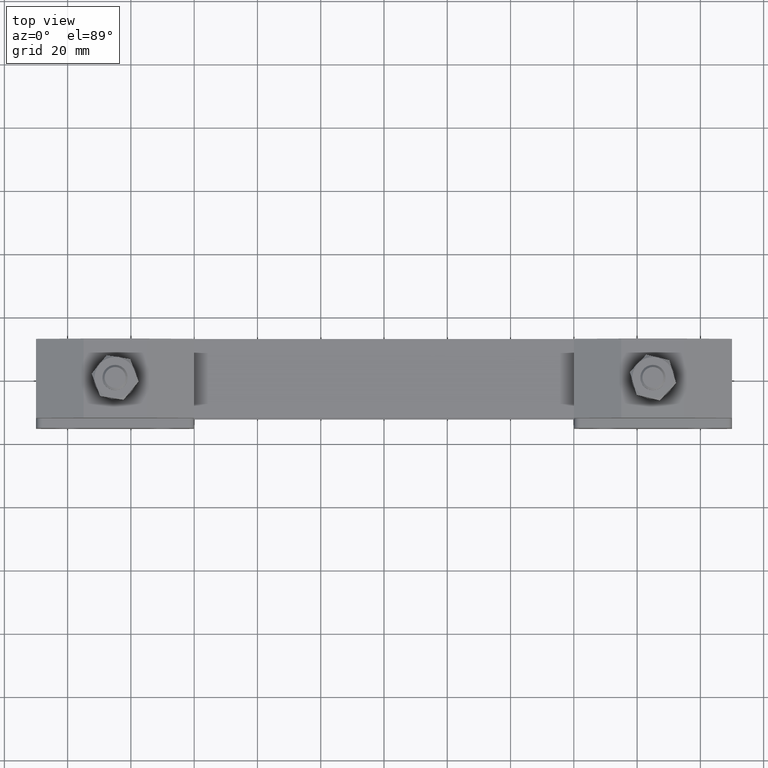
[diagram: clean part render]
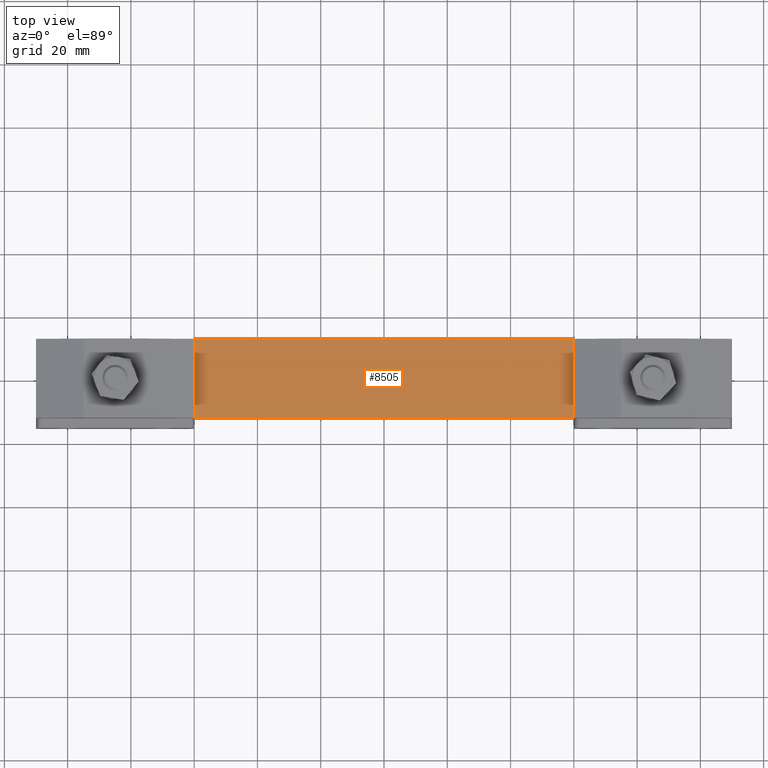
[diagram: same view with one face highlighted and labeled with its STEP entity id]
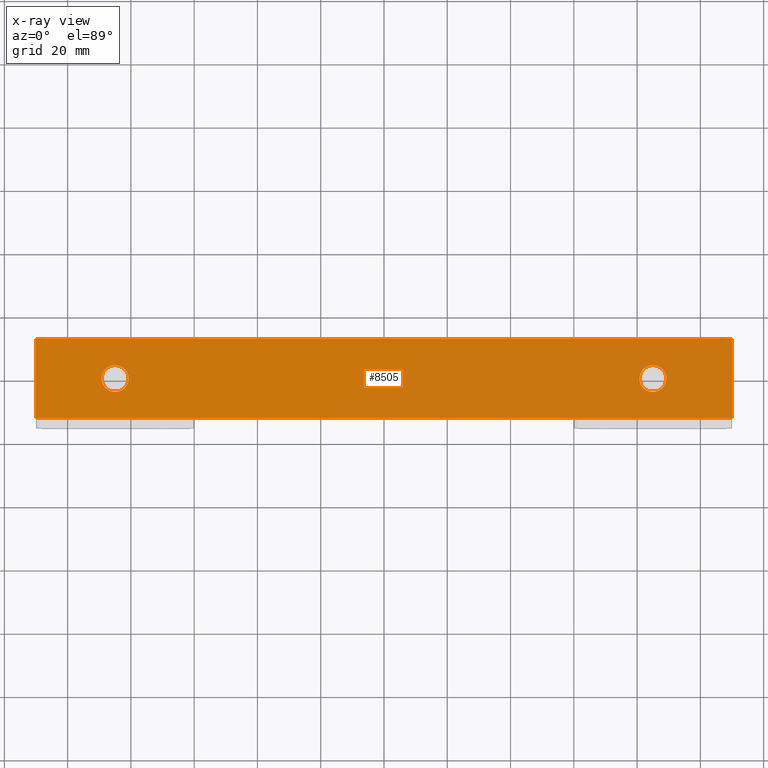
[diagram: x-ray of the same camera — body ghosted, the highlighted face saturated]
A machine part, top view. The second image highlights one B-rep face of the part: STEP entity #8505.
The next image is the same camera in x-ray: the body ghosted, the highlighted face saturated — about 0% of this face is hidden behind the body in this view.
In plain terms, the highlighted planar face has unit normal (0, 0, 1).
Its self-contained STEP definition (entity closure, byte-faithful):
#153 = EDGE_CURVE ( 'NONE', #14371, #13866, #4004, .T. ) ;
#373 = DIRECTION ( 'NONE',  ( 0.0000000000000000000, 0.0000000000000000000, -1.000000000000000000 ) ) ;
#708 = CARTESIAN_POINT ( 'NONE',  ( 110.0000000000000000, 12.50000000000000000, 28.00000000000000000 ) ) ;
#935 = ORIENTED_EDGE ( 'NONE', *, *, #13508, .T. ) ;
#1132 = DIRECTION ( 'NONE',  ( -1.000000000000000000, 0.0000000000000000000, 0.0000000000000000000 ) ) ;
#1184 = VECTOR ( 'NONE', #20796, 1000.000000000000000 ) ;
#1200 = CARTESIAN_POINT ( 'NONE',  ( -110.0000000000000000, 12.50000000000000000, 28.00000000000000000 ) ) ;
#1572 = CARTESIAN_POINT ( 'NONE',  ( -110.0000000000000000, -12.50000000000000000, 28.00000000000000000 ) ) ;
#2011 = CARTESIAN_POINT ( 'NONE',  ( 85.00000000000000000, 2.082156062149785100E-014, 28.00000000000000000 ) ) ;
#2048 = PLANE ( 'NONE',  #8786 ) ;
#3083 = CARTESIAN_POINT ( 'NONE',  ( -85.00000000000000000, 3.252606517453555500E-018, 28.00000000000000000 ) ) ;
#3192 = CIRCLE ( 'NONE', #16843, 4.250000000000003600 ) ;
#3926 = CARTESIAN_POINT ( 'NONE',  ( 89.25000000000001400, 2.134203551113547500E-014, 28.00000000000000000 ) ) ;
#3999 = ORIENTED_EDGE ( 'NONE', *, *, #17997, .T. ) ;
#4004 = LINE ( 'NONE', #708, #20933 ) ;
#4105 = AXIS2_PLACEMENT_3D ( 'NONE', #2011, #373, #6988 ) ;
#4141 = FACE_BOUND ( 'NONE', #8553, .T. ) ;
#4370 = EDGE_CURVE ( 'NONE', #6677, #12987, #12087, .T. ) ;
#5765 = CARTESIAN_POINT ( 'NONE',  ( 110.0000000000000000, 12.50000000000000000, 28.00000000000000000 ) ) ;
#6121 = DIRECTION ( 'NONE',  ( 0.0000000000000000000, 0.0000000000000000000, -1.000000000000000000 ) ) ;
#6378 = CARTESIAN_POINT ( 'NONE',  ( 110.0000000000000000, -12.50000000000000000, 28.00000000000000000 ) ) ;
#6677 = VERTEX_POINT ( 'NONE', #3926 ) ;
#6730 = DIRECTION ( 'NONE',  ( -1.000000000000000000, 5.519574696289839900E-017, 0.0000000000000000000 ) ) ;
#6859 = CARTESIAN_POINT ( 'NONE',  ( 80.75000000000000000, 2.082156062149785100E-014, 28.00000000000000000 ) ) ;
#6860 = VERTEX_POINT ( 'NONE', #16762 ) ;
#6988 = DIRECTION ( 'NONE',  ( -1.000000000000000000, 0.0000000000000000000, 0.0000000000000000000 ) ) ;
#6991 = VERTEX_POINT ( 'NONE', #11955 ) ;
#7841 = DIRECTION ( 'NONE',  ( -1.000000000000000000, 0.0000000000000000000, 0.0000000000000000000 ) ) ;
#8505 = ADVANCED_FACE ( 'NONE', ( #16712, #4141, #18251 ), #2048, .T. ) ;
#8553 = EDGE_LOOP ( 'NONE', ( #11261, #13377 ) ) ;
#8786 = AXIS2_PLACEMENT_3D ( 'NONE', #15280, #11837, #18401 ) ;
#9948 = LINE ( 'NONE', #1200, #1184 ) ;
#10661 = DIRECTION ( 'NONE',  ( 0.0000000000000000000, 0.0000000000000000000, -1.000000000000000000 ) ) ;
#10864 = CARTESIAN_POINT ( 'NONE',  ( -85.00000000000000000, 3.252606517453555500E-018, 28.00000000000000000 ) ) ;
#11261 = ORIENTED_EDGE ( 'NONE', *, *, #14887, .T. ) ;
#11837 = DIRECTION ( 'NONE',  ( 0.0000000000000000000, 0.0000000000000000000, 1.000000000000000000 ) ) ;
#11917 = CARTESIAN_POINT ( 'NONE',  ( -89.25000000000001400, 3.252606517453555500E-018, 28.00000000000000000 ) ) ;
#11955 = CARTESIAN_POINT ( 'NONE',  ( -80.75000000000000000, 5.237274961550783300E-016, 28.00000000000000000 ) ) ;
#12087 = CIRCLE ( 'NONE', #15730, 4.250000000000003600 ) ;
#12320 = CARTESIAN_POINT ( 'NONE',  ( 85.00000000000000000, 2.082156062149785100E-014, 28.00000000000000000 ) ) ;
#12661 = CIRCLE ( 'NONE', #4105, 4.250000000000003600 ) ;
#12664 = EDGE_CURVE ( 'NONE', #6860, #14371, #15581, .T. ) ;
#12765 = VECTOR ( 'NONE', #13327, 1000.000000000000000 ) ;
#12987 = VERTEX_POINT ( 'NONE', #6859 ) ;
#13096 = ORIENTED_EDGE ( 'NONE', *, *, #20227, .T. ) ;
#13223 = ORIENTED_EDGE ( 'NONE', *, *, #153, .T. ) ;
#13327 = DIRECTION ( 'NONE',  ( 1.000000000000000000, 0.0000000000000000000, 0.0000000000000000000 ) ) ;
#13377 = ORIENTED_EDGE ( 'NONE', *, *, #4370, .T. ) ;
#13508 = EDGE_CURVE ( 'NONE', #18881, #6991, #3192, .T. ) ;
#13798 = DIRECTION ( 'NONE',  ( 0.0000000000000000000, 1.000000000000000000, 0.0000000000000000000 ) ) ;
#13807 = EDGE_LOOP ( 'NONE', ( #3999, #15825, #13223, #18565 ) ) ;
#13866 = VERTEX_POINT ( 'NONE', #5765 ) ;
#14371 = VERTEX_POINT ( 'NONE', #6378 ) ;
#14786 = CARTESIAN_POINT ( 'NONE',  ( -110.0000000000000000, 12.50000000000000000, 28.00000000000000000 ) ) ;
#14887 = EDGE_CURVE ( 'NONE', #12987, #6677, #12661, .T. ) ;
#15280 = CARTESIAN_POINT ( 'NONE',  ( -110.0000000000000000, -12.50000000000000000, 28.00000000000000000 ) ) ;
#15581 = LINE ( 'NONE', #1572, #12765 ) ;
#15667 = DIRECTION ( 'NONE',  ( -1.000000000000000000, 0.0000000000000000000, 0.0000000000000000000 ) ) ;
#15723 = CIRCLE ( 'NONE', #19381, 4.250000000000003600 ) ;
#15730 = AXIS2_PLACEMENT_3D ( 'NONE', #12320, #10661, #15667 ) ;
#15825 = ORIENTED_EDGE ( 'NONE', *, *, #12664, .T. ) ;
#16256 = VERTEX_POINT ( 'NONE', #14786 ) ;
#16467 = CARTESIAN_POINT ( 'NONE',  ( -110.0000000000000000, 12.50000000000000000, 28.00000000000000000 ) ) ;
#16712 = FACE_BOUND ( 'NONE', #19360, .T. ) ;
#16762 = CARTESIAN_POINT ( 'NONE',  ( -110.0000000000000000, -12.50000000000000000, 28.00000000000000000 ) ) ;
#16843 = AXIS2_PLACEMENT_3D ( 'NONE', #3083, #6121, #7841 ) ;
#17997 = EDGE_CURVE ( 'NONE', #16256, #6860, #9948, .T. ) ;
#18251 = FACE_OUTER_BOUND ( 'NONE', #13807, .T. ) ;
#18401 = DIRECTION ( 'NONE',  ( 1.000000000000000000, 0.0000000000000000000, 0.0000000000000000000 ) ) ;
#18565 = ORIENTED_EDGE ( 'NONE', *, *, #20997, .T. ) ;
#18881 = VERTEX_POINT ( 'NONE', #11917 ) ;
#19178 = DIRECTION ( 'NONE',  ( 0.0000000000000000000, 0.0000000000000000000, -1.000000000000000000 ) ) ;
#19360 = EDGE_LOOP ( 'NONE', ( #935, #13096 ) ) ;
#19381 = AXIS2_PLACEMENT_3D ( 'NONE', #10864, #19178, #1132 ) ;
#19821 = LINE ( 'NONE', #16467, #21026 ) ;
#20227 = EDGE_CURVE ( 'NONE', #6991, #18881, #15723, .T. ) ;
#20796 = DIRECTION ( 'NONE',  ( 0.0000000000000000000, -1.000000000000000000, 0.0000000000000000000 ) ) ;
#20933 = VECTOR ( 'NONE', #13798, 1000.000000000000000 ) ;
#20997 = EDGE_CURVE ( 'NONE', #13866, #16256, #19821, .T. ) ;
#21026 = VECTOR ( 'NONE', #6730, 1000.000000000000000 ) ;